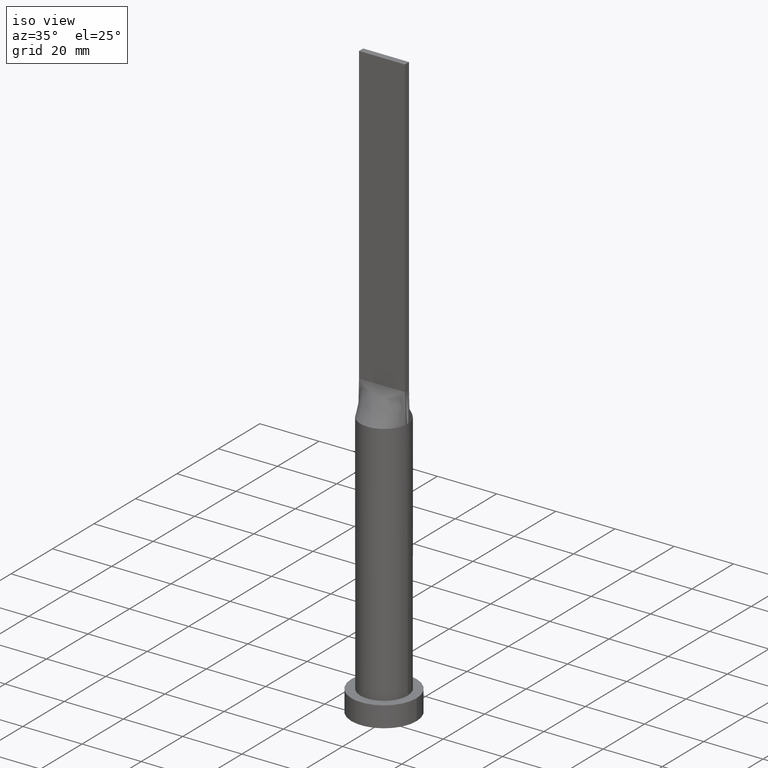
[diagram: clean part render]
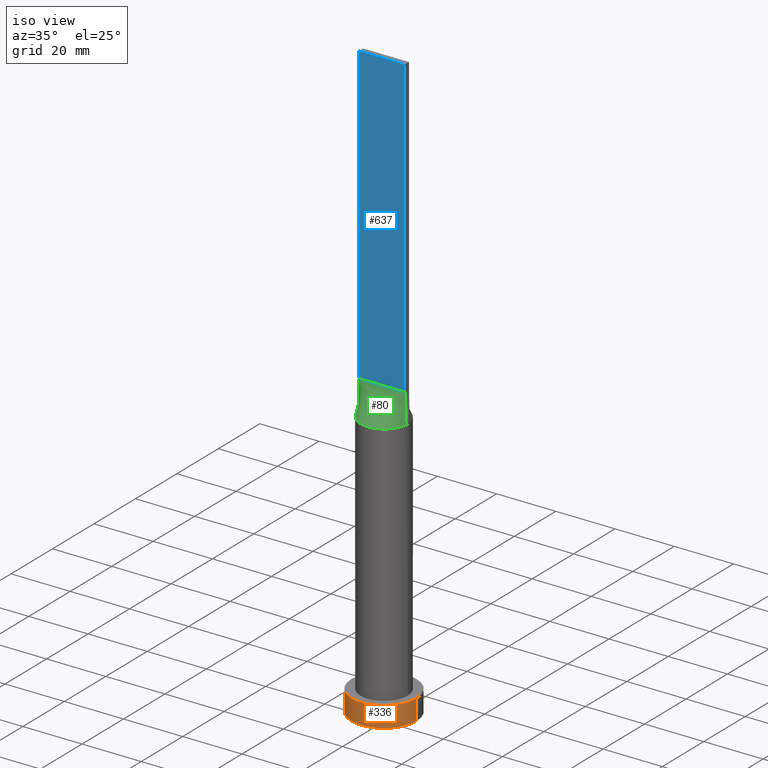
[diagram: same view with three faces highlighted in distinct colors, each labeled with its STEP entity id]
A machine part, iso view with three faces highlighted in distinct colors.
Their STEP definitions:

[orange] entity #336 — the highlighted cylindrical surface (partial cylindrical patch) has radius 11 mm, axis along (-0, -0, -1).
#3 = CARTESIAN_POINT ( 'NONE',  ( -11.00000000000000000, 0.000000000000000000, 7.000000000000000000 ) ) ;
#5 = CYLINDRICAL_SURFACE ( 'NONE', #425, 11.00000000000000000 ) ;
#27 = DIRECTION ( 'NONE',  ( -0.000000000000000000, -0.000000000000000000, -1.000000000000000000 ) ) ;
#28 = EDGE_CURVE ( 'NONE', #583, #354, #617, .T. ) ;
#29 = VECTOR ( 'NONE', #27, 1000.000000000000000 ) ;
#36 = EDGE_CURVE ( 'NONE', #248, #546, #170, .T. ) ;
#99 = EDGE_LOOP ( 'NONE', ( #411, #124, #423, #254 ) ) ;
#100 = DIRECTION ( 'NONE',  ( 1.000000000000000000, 0.000000000000000000, 0.000000000000000000 ) ) ;
#124 = ORIENTED_EDGE ( 'NONE', *, *, #289, .F. ) ;
#131 = VECTOR ( 'NONE', #468, 1000.000000000000000 ) ;
#141 = CIRCLE ( 'NONE', #577, 11.00000000000000000 ) ;
#170 = LINE ( 'NONE', #332, #131 ) ;
#208 = CARTESIAN_POINT ( 'NONE',  ( 0.000000000000000000, 0.000000000000000000, 7.000000000000000000 ) ) ;
#248 = VERTEX_POINT ( 'NONE', #3 ) ;
#254 = ORIENTED_EDGE ( 'NONE', *, *, #400, .T. ) ;
#258 = DIRECTION ( 'NONE',  ( -1.000000000000000000, 0.000000000000000000, 0.000000000000000000 ) ) ;
#259 = CIRCLE ( 'NONE', #499, 11.00000000000000000 ) ;
#289 = EDGE_CURVE ( 'NONE', #248, #583, #141, .T. ) ;
#332 = CARTESIAN_POINT ( 'NONE',  ( -11.00000000000000000, 0.000000000000000000, 7.000000000000000000 ) ) ;
#336 = ADVANCED_FACE ( 'NONE', ( #461 ), #5, .T. ) ;
#353 = DIRECTION ( 'NONE',  ( -0.000000000000000000, -0.000000000000000000, -1.000000000000000000 ) ) ;
#354 = VERTEX_POINT ( 'NONE', #367 ) ;
#356 = CARTESIAN_POINT ( 'NONE',  ( 0.000000000000000000, 0.000000000000000000, 7.000000000000000000 ) ) ;
#367 = CARTESIAN_POINT ( 'NONE',  ( 11.00000000000000000, 1.347111479062088405E-15, 0.000000000000000000 ) ) ;
#384 = CARTESIAN_POINT ( 'NONE',  ( 11.00000000000000000, 1.347111479062088405E-15, 7.000000000000000000 ) ) ;
#400 = EDGE_CURVE ( 'NONE', #546, #354, #259, .T. ) ;
#411 = ORIENTED_EDGE ( 'NONE', *, *, #28, .F. ) ;
#423 = ORIENTED_EDGE ( 'NONE', *, *, #36, .T. ) ;
#425 = AXIS2_PLACEMENT_3D ( 'NONE', #356, #353, #258 ) ;
#444 = CARTESIAN_POINT ( 'NONE',  ( 11.00000000000000000, 1.347111479062088405E-15, 7.000000000000000000 ) ) ;
#457 = DIRECTION ( 'NONE',  ( 0.000000000000000000, 0.000000000000000000, 1.000000000000000000 ) ) ;
#461 = FACE_OUTER_BOUND ( 'NONE', #99, .T. ) ;
#468 = DIRECTION ( 'NONE',  ( -0.000000000000000000, -0.000000000000000000, -1.000000000000000000 ) ) ;
#499 = AXIS2_PLACEMENT_3D ( 'NONE', #501, #508, #599 ) ;
#501 = CARTESIAN_POINT ( 'NONE',  ( 0.000000000000000000, 0.000000000000000000, 0.000000000000000000 ) ) ;
#508 = DIRECTION ( 'NONE',  ( 0.000000000000000000, 0.000000000000000000, 1.000000000000000000 ) ) ;
#546 = VERTEX_POINT ( 'NONE', #587 ) ;
#577 = AXIS2_PLACEMENT_3D ( 'NONE', #208, #457, #100 ) ;
#583 = VERTEX_POINT ( 'NONE', #444 ) ;
#587 = CARTESIAN_POINT ( 'NONE',  ( -11.00000000000000000, 0.000000000000000000, 0.000000000000000000 ) ) ;
#599 = DIRECTION ( 'NONE',  ( 1.000000000000000000, 0.000000000000000000, 0.000000000000000000 ) ) ;
#617 = LINE ( 'NONE', #384, #29 ) ;

[blue] entity #637 — the highlighted planar face has unit normal (0, 1, -0).
#19 = DIRECTION ( 'NONE',  ( 1.000000000000000000, -6.994852725712931474E-17, 0.000000000000000000 ) ) ;
#70 = EDGE_LOOP ( 'NONE', ( #615, #222, #76, #72 ) ) ;
#72 = ORIENTED_EDGE ( 'NONE', *, *, #297, .T. ) ;
#76 = ORIENTED_EDGE ( 'NONE', *, *, #495, .F. ) ;
#77 = PLANE ( 'NONE',  #553 ) ;
#86 = CARTESIAN_POINT ( 'NONE',  ( -7.750000000000000000, -0.9999999999999986677, 100.0000000000000000 ) ) ;
#108 = LINE ( 'NONE', #284, #525 ) ;
#127 = VERTEX_POINT ( 'NONE', #165 ) ;
#136 = LINE ( 'NONE', #533, #410 ) ;
#137 = DIRECTION ( 'NONE',  ( -1.000000000000000000, 6.994852725712931474E-17, 0.000000000000000000 ) ) ;
#165 = CARTESIAN_POINT ( 'NONE',  ( 7.750000000000000000, -0.9999999999999997780, 200.0000000000000000 ) ) ;
#182 = CARTESIAN_POINT ( 'NONE',  ( -7.750000000000000000, -0.9999999999999986677, 200.0000000000000000 ) ) ;
#203 = CARTESIAN_POINT ( 'NONE',  ( -7.750000000000000000, -0.9999999999999986677, 100.0000000000000000 ) ) ;
#222 = ORIENTED_EDGE ( 'NONE', *, *, #515, .F. ) ;
#246 = VECTOR ( 'NONE', #366, 1000.000000000000000 ) ;
#284 = CARTESIAN_POINT ( 'NONE',  ( -7.750000000000000000, -0.9999999999999986677, 200.0000000000000000 ) ) ;
#297 = EDGE_CURVE ( 'NONE', #503, #518, #496, .T. ) ;
#299 = EDGE_CURVE ( 'NONE', #518, #497, #460, .T. ) ;
#366 = DIRECTION ( 'NONE',  ( -0.000000000000000000, -0.000000000000000000, -1.000000000000000000 ) ) ;
#377 = CARTESIAN_POINT ( 'NONE',  ( 7.750000000000000000, -0.9999999999999997780, 100.0000000000000000 ) ) ;
#409 = CARTESIAN_POINT ( 'NONE',  ( -7.750000000000000000, -0.9999999999999986677, 200.0000000000000000 ) ) ;
#410 = VECTOR ( 'NONE', #538, 1000.000000000000000 ) ;
#432 = CARTESIAN_POINT ( 'NONE',  ( -7.750000000000000000, -0.9999999999999986677, 200.0000000000000000 ) ) ;
#460 = LINE ( 'NONE', #203, #602 ) ;
#495 = EDGE_CURVE ( 'NONE', #503, #127, #108, .T. ) ;
#496 = LINE ( 'NONE', #409, #246 ) ;
#497 = VERTEX_POINT ( 'NONE', #377 ) ;
#503 = VERTEX_POINT ( 'NONE', #432 ) ;
#515 = EDGE_CURVE ( 'NONE', #127, #497, #136, .T. ) ;
#518 = VERTEX_POINT ( 'NONE', #86 ) ;
#525 = VECTOR ( 'NONE', #571, 1000.000000000000000 ) ;
#529 = FACE_OUTER_BOUND ( 'NONE', #70, .T. ) ;
#533 = CARTESIAN_POINT ( 'NONE',  ( 7.750000000000000000, -0.9999999999999997780, 200.0000000000000000 ) ) ;
#538 = DIRECTION ( 'NONE',  ( -0.000000000000000000, -0.000000000000000000, -1.000000000000000000 ) ) ;
#553 = AXIS2_PLACEMENT_3D ( 'NONE', #182, #581, #137 ) ;
#571 = DIRECTION ( 'NONE',  ( 1.000000000000000000, -6.994852725712931474E-17, 0.000000000000000000 ) ) ;
#581 = DIRECTION ( 'NONE',  ( 6.994852725712931474E-17, 1.000000000000000000, -0.000000000000000000 ) ) ;
#602 = VECTOR ( 'NONE', #19, 1000.000000000000000 ) ;
#615 = ORIENTED_EDGE ( 'NONE', *, *, #299, .T. ) ;
#637 = ADVANCED_FACE ( 'NONE', ( #529 ), #77, .F. ) ;

[green] entity #80 — the highlighted face is a freeform B-spline surface patch.
#17 = CARTESIAN_POINT ( 'NONE',  ( -6.226863775955933988, -5.046530946333157353, 90.00000000000001421 ) ) ;
#19 = DIRECTION ( 'NONE',  ( 1.000000000000000000, -6.994852725712931474E-17, 0.000000000000000000 ) ) ;
#25 = CARTESIAN_POINT ( 'NONE',  ( -1.291666666666666741, -0.9999999999999991118, 100.0000000000000284 ) ) ;
#48 = DIRECTION ( 'NONE',  ( 0.000000000000000000, 0.000000000000000000, 1.000000000000000000 ) ) ;
#57 = CARTESIAN_POINT ( 'NONE',  ( 7.192469010134844964, -3.526369025759696907, 90.00000000000001421 ) ) ;
#65 = CARTESIAN_POINT ( 'NONE',  ( 1.291666666666665630, -0.9999999999999991118, 100.0000000000000142 ) ) ;
#73 = VECTOR ( 'NONE', #87, 1000.000000000000114 ) ;
#75 = CARTESIAN_POINT ( 'NONE',  ( 4.333237558274721124, -6.745559271922137334, 90.00000000000004263 ) ) ;
#78 = CARTESIAN_POINT ( 'NONE',  ( 3.552083333333333481, -0.9999999999999993339, 100.0000000000000142 ) ) ;
#80 = ADVANCED_FACE ( 'NONE', ( #119 ), #359, .T. ) ;
#86 = CARTESIAN_POINT ( 'NONE',  ( -7.750000000000000000, -0.9999999999999986677, 100.0000000000000000 ) ) ;
#87 = DIRECTION ( 'NONE',  ( -0.01841911599500831165, 0.002376660128388246706, 0.9998275289531671772 ) ) ;
#105 = LINE ( 'NONE', #399, #233 ) ;
#106 = CARTESIAN_POINT ( 'NONE',  ( 4.197916666666666963, -0.9999999999999993339, 100.0000000000000142 ) ) ;
#114 = CARTESIAN_POINT ( 'NONE',  ( 5.166666666666666963, -0.9999999999999995559, 100.0000000000000000 ) ) ;
#115 = CARTESIAN_POINT ( 'NONE',  ( -2.302877821226939403, -7.683241396761614439, 90.00000000000007105 ) ) ;
#117 = CARTESIAN_POINT ( 'NONE',  ( 7.750000000000000000, -0.9999999999999997780, 100.0000000000000000 ) ) ;
#119 = FACE_OUTER_BOUND ( 'NONE', #607, .T. ) ;
#122 = CARTESIAN_POINT ( 'NONE',  ( 6.994548530637813677, -3.908833842696238570, 90.00000000000000000 ) ) ;
#125 = CARTESIAN_POINT ( 'NONE',  ( -5.489583333333332149, -0.9999999999999986677, 100.0000000000000000 ) ) ;
#128 = CARTESIAN_POINT ( 'NONE',  ( 1.614583333333331927, -0.9999999999999991118, 100.0000000000000284 ) ) ;
#161 = CARTESIAN_POINT ( 'NONE',  ( 7.675166908885234562, -2.399868494543666131, 90.00000000000004263 ) ) ;
#166 = CARTESIAN_POINT ( 'NONE',  ( 1.172177046651855292, -7.934824862069280726, 90.00000000000007105 ) ) ;
#169 = CARTESIAN_POINT ( 'NONE',  ( 7.104166666666667851, -0.9999999999999995559, 100.0000000000000000 ) ) ;
#178 = CARTESIAN_POINT ( 'NONE',  ( -7.104166666666666963, -0.9999999999999986677, 100.0000000000000000 ) ) ;
#183 = LINE ( 'NONE', #388, #73 ) ;
#190 = VERTEX_POINT ( 'NONE', #420 ) ;
#192 = ORIENTED_EDGE ( 'NONE', *, *, #299, .F. ) ;
#203 = CARTESIAN_POINT ( 'NONE',  ( -7.750000000000000000, -0.9999999999999986677, 100.0000000000000000 ) ) ;
#207 = CARTESIAN_POINT ( 'NONE',  ( 0.000000000000000000, 0.000000000000000000, 90.00000000000001421 ) ) ;
#219 = CARTESIAN_POINT ( 'NONE',  ( -0.3229166666666661301, -0.9999999999999991118, 100.0000000000000142 ) ) ;
#220 = VERTEX_POINT ( 'NONE', #412 ) ;
#221 = CARTESIAN_POINT ( 'NONE',  ( 4.520833333333333037, -0.9999999999999995559, 100.0000000000000142 ) ) ;
#226 = CARTESIAN_POINT ( 'NONE',  ( -1.172177046651859511, -7.934824862069280726, 90.00000000000004263 ) ) ;
#232 = CARTESIAN_POINT ( 'NONE',  ( -3.552083333333331705, -0.9999999999999986677, 100.0000000000000000 ) ) ;
#233 = VECTOR ( 'NONE', #305, 1000.000000000000114 ) ;
#237 = CARTESIAN_POINT ( 'NONE',  ( -3.229166666666665186, -0.9999999999999986677, 100.0000000000000000 ) ) ;
#238 = EDGE_CURVE ( 'NONE', #190, #497, #183, .T. ) ;
#239 = CARTESIAN_POINT ( 'NONE',  ( 5.489583333333333925, -0.9999999999999995559, 100.0000000000000000 ) ) ;
#255 = DIRECTION ( 'NONE',  ( 1.000000000000000000, 0.000000000000000000, 0.000000000000000000 ) ) ;
#273 = CARTESIAN_POINT ( 'NONE',  ( -4.520833333333331261, -0.9999999999999986677, 100.0000000000000000 ) ) ;
#277 = CARTESIAN_POINT ( 'NONE',  ( -4.333237558274724677, -6.745559271922134670, 90.00000000000001421 ) ) ;
#278 = CARTESIAN_POINT ( 'NONE',  ( -7.750000000000000000, -0.9999999999999986677, 100.0000000000000000 ) ) ;
#290 = ORIENTED_EDGE ( 'NONE', *, *, #238, .T. ) ;
#299 = EDGE_CURVE ( 'NONE', #518, #497, #460, .T. ) ;
#305 = DIRECTION ( 'NONE',  ( -0.01841911599500848859, -0.002376660128388073667, -0.9998275289531671772 ) ) ;
#320 = CARTESIAN_POINT ( 'NONE',  ( -2.260416666666665630, -0.9999999999999991118, 100.0000000000000142 ) ) ;
#323 = CARTESIAN_POINT ( 'NONE',  ( 0.5861720261543107435, -8.000000000000001776, 90.00000000000004263 ) ) ;
#331 = CARTESIAN_POINT ( 'NONE',  ( 3.229166666666666519, -0.9999999999999993339, 100.0000000000000142 ) ) ;
#339 = CARTESIAN_POINT ( 'NONE',  ( 3.862537548001456322, -7.028047916340264045, 90.00000000000007105 ) ) ;
#359 = B_SPLINE_SURFACE_WITH_KNOTS ( 'NONE', 3, 1, ( 
 ( #611, #278 ),
 ( #417, #178 ),
 ( #370, #574 ),
 ( #426, #125 ),
 ( #572, #514 ),
 ( #374, #273 ),
 ( #17, #562 ),
 ( #521, #232 ),
 ( #470, #237 ),
 ( #277, #465 ),
 ( #622, #320 ),
 ( #507, #414 ),
 ( #115, #25 ),
 ( #226, #421 ),
 ( #614, #219 ),
 ( #323, #606 ),
 ( #166, #378 ),
 ( #510, #65 ),
 ( #569, #128 ),
 ( #339, #527 ),
 ( #75, #474 ),
 ( #372, #331 ),
 ( #416, #78 ),
 ( #368, #106 ),
 ( #476, #221 ),
 ( #122, #114 ),
 ( #57, #239 ),
 ( #161, #609 ),
 ( #516, #169 ),
 ( #565, #117 ) ),
 .UNSPECIFIED., .F., .F., .F.,
 ( 4, 2, 2, 2, 2, 2, 2, 2, 2, 2, 2, 2, 2, 2, 4 ),
 ( 2, 2 ),
 ( 0.000000000000000000, 0.1250000000000000555, 0.1875000000000000555, 0.2500000000000000555, 0.3125000000000000000, 0.3750000000000000000, 0.4374999999999999445, 0.4999999999999999445, 0.5624999999999998890, 0.6249999999999998890, 0.6875000000000000000, 0.7500000000000000000, 0.8125000000000000000, 0.8750000000000000000, 1.000000000000000000 ),
 ( 0.000000000000000000, 1.000000000000000000 ),
 .UNSPECIFIED. ) ;
#368 = CARTESIAN_POINT ( 'NONE',  ( 6.226863775955932212, -5.046530946333159129, 90.00000000000002842 ) ) ;
#370 = CARTESIAN_POINT ( 'NONE',  ( -7.675166908885238115, -2.399868494543664799, 90.00000000000001421 ) ) ;
#372 = CARTESIAN_POINT ( 'NONE',  ( 5.183259239191612799, -6.116644610143060490, 90.00000000000002842 ) ) ;
#374 = CARTESIAN_POINT ( 'NONE',  ( -6.511821874825411527, -4.668925682402791821, 90.00000000000002842 ) ) ;
#377 = CARTESIAN_POINT ( 'NONE',  ( 7.750000000000000000, -0.9999999999999997780, 100.0000000000000000 ) ) ;
#378 = CARTESIAN_POINT ( 'NONE',  ( 0.6458333333333330373, -0.9999999999999991118, 100.0000000000000142 ) ) ;
#388 = CARTESIAN_POINT ( 'NONE',  ( 7.842111466536100473, -1.011885350520787430, 95.00000000000000000 ) ) ;
#399 = CARTESIAN_POINT ( 'NONE',  ( -7.842111466536100473, -1.011885350520785209, 95.00000000000000000 ) ) ;
#412 = CARTESIAN_POINT ( 'NONE',  ( -7.934257051336532029, -1.023775119746132001, 90.00000000000001421 ) ) ;
#414 = CARTESIAN_POINT ( 'NONE',  ( -1.614583333333332815, -0.9999999999999991118, 100.0000000000000284 ) ) ;
#416 = CARTESIAN_POINT ( 'NONE',  ( 5.562660223239390689, -5.770452176164421410, 90.00000000000001421 ) ) ;
#417 = CARTESIAN_POINT ( 'NONE',  ( -7.849610172922084850, -1.679519592204998357, 90.00000000000002842 ) ) ;
#420 = CARTESIAN_POINT ( 'NONE',  ( 7.934268799922667981, -1.023776637617846319, 90.00000000000001421 ) ) ;
#421 = CARTESIAN_POINT ( 'NONE',  ( -0.6458333333333331483, -0.9999999999999991118, 100.0000000000000284 ) ) ;
#426 = CARTESIAN_POINT ( 'NONE',  ( -7.192469010134850294, -3.526369025759695131, 90.00000000000005684 ) ) ;
#437 = EDGE_CURVE ( 'NONE', #518, #220, #105, .T. ) ;
#460 = LINE ( 'NONE', #203, #602 ) ;
#465 = CARTESIAN_POINT ( 'NONE',  ( -2.583333333333332593, -0.9999999999999988898, 100.0000000000000000 ) ) ;
#470 = CARTESIAN_POINT ( 'NONE',  ( -5.183259239191617240, -6.116644610143057825, 90.00000000000002842 ) ) ;
#474 = CARTESIAN_POINT ( 'NONE',  ( 2.583333333333333037, -0.9999999999999991118, 100.0000000000000142 ) ) ;
#476 = CARTESIAN_POINT ( 'NONE',  ( 6.511821874825406198, -4.668925682402793598, 90.00000000000001421 ) ) ;
#497 = VERTEX_POINT ( 'NONE', #377 ) ;
#507 = CARTESIAN_POINT ( 'NONE',  ( -2.847317194822263531, -7.497028652483947120, 90.00000000000002842 ) ) ;
#510 = CARTESIAN_POINT ( 'NONE',  ( 2.302877821226934074, -7.683241396761609998, 90.00000000000007105 ) ) ;
#514 = CARTESIAN_POINT ( 'NONE',  ( -5.166666666666665186, -0.9999999999999986677, 100.0000000000000000 ) ) ;
#516 = CARTESIAN_POINT ( 'NONE',  ( 7.849610172922084850, -1.679519592204998357, 89.99999999999998579 ) ) ;
#518 = VERTEX_POINT ( 'NONE', #86 ) ;
#521 = CARTESIAN_POINT ( 'NONE',  ( -5.562660223239391577, -5.770452176164420521, 90.00000000000002842 ) ) ;
#527 = CARTESIAN_POINT ( 'NONE',  ( 2.260416666666665630, -0.9999999999999991118, 100.0000000000000284 ) ) ;
#528 = EDGE_CURVE ( 'NONE', #220, #190, #544, .T. ) ;
#544 = CIRCLE ( 'NONE', #578, 8.000000000000000000 ) ;
#562 = CARTESIAN_POINT ( 'NONE',  ( -4.197916666666665186, -0.9999999999999986677, 100.0000000000000000 ) ) ;
#565 = CARTESIAN_POINT ( 'NONE',  ( 7.934222933072200945, -1.023770701041574860, 90.00000000000001421 ) ) ;
#569 = CARTESIAN_POINT ( 'NONE',  ( 2.847317194822259534, -7.497028652483948008, 90.00000000000004263 ) ) ;
#572 = CARTESIAN_POINT ( 'NONE',  ( -6.994548530637818118, -3.908833842696237681, 90.00000000000001421 ) ) ;
#574 = CARTESIAN_POINT ( 'NONE',  ( -6.458333333333333037, -0.9999999999999986677, 100.0000000000000000 ) ) ;
#578 = AXIS2_PLACEMENT_3D ( 'NONE', #207, #48, #255 ) ;
#601 = ORIENTED_EDGE ( 'NONE', *, *, #528, .T. ) ;
#602 = VECTOR ( 'NONE', #19, 1000.000000000000000 ) ;
#606 = CARTESIAN_POINT ( 'NONE',  ( 0.3229166666666669627, -0.9999999999999991118, 100.0000000000000142 ) ) ;
#607 = EDGE_LOOP ( 'NONE', ( #601, #290, #192, #634 ) ) ;
#609 = CARTESIAN_POINT ( 'NONE',  ( 6.458333333333333925, -0.9999999999999995559, 100.0000000000000000 ) ) ;
#611 = CARTESIAN_POINT ( 'NONE',  ( -7.934222933072202721, -1.023770701041571973, 90.00000000000001421 ) ) ;
#614 = CARTESIAN_POINT ( 'NONE',  ( -0.5861720261543158506, -7.999999999999998224, 90.00000000000001421 ) ) ;
#622 = CARTESIAN_POINT ( 'NONE',  ( -3.862537548001458987, -7.028047916340261381, 90.00000000000002842 ) ) ;
#634 = ORIENTED_EDGE ( 'NONE', *, *, #437, .T. ) ;